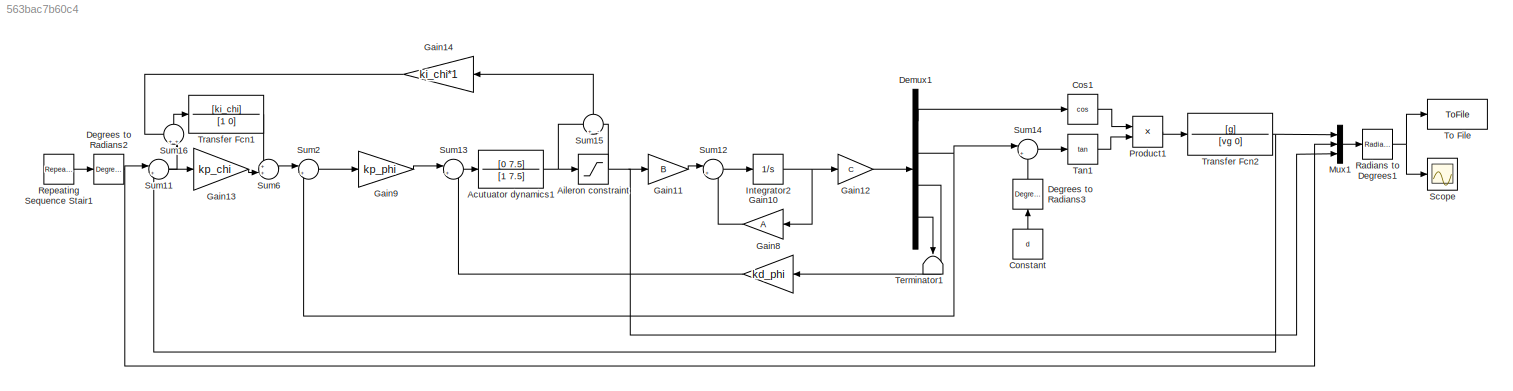
MODEL slx_563bac7b60c4
KIND model
CONFIG AbsTol = auto
CONFIG EnableMultiTasking = off
CONFIG FixedStep = auto
CONFIG MaxStep = auto
CONFIG MinStep = auto
CONFIG RelTol = 1e-3
CONFIG SampleTimeConstraint = Unconstrained
CONFIG Solver = VariableStepAuto
CONFIG SolverName = VariableStepAuto
CONFIG StartTime = 0.0
CONFIG StopTime = 500
BLOCK [TransferFcn] Acutuator dynamics1
  Denominator = [1 7.5]
  Numerator = [0 7.5]
BLOCK [Saturate] Aileron constraint 
  InputPortMap = u0
  LowerLimit = -30*deg2rad
  Ports = [1, 1]
  UpperLimit = 30*deg2rad
BLOCK [Constant] Constant
  Value = d
BLOCK [Trigonometry] Cos1
  Operator = cos
  Ports = [1, 1]
BLOCK [Reference] Degrees to Radians2  REF=simulink_extras/Transformations/Degrees to
Radians
  Ports = [1, 1]
  SourceBlock = simulink_extras/Transformations/Degrees to\nRadians
  SourceProductBaseCode = SL
  SourceProductName = Simulink
  SourceType = DegreesToRadians
BLOCK [Reference] Degrees to Radians3  REF=simulink_extras/Transformations/Degrees to
Radians
  Ports = [1, 1]
  SourceBlock = simulink_extras/Transformations/Degrees to\nRadians
  SourceProductBaseCode = SL
  SourceProductName = Simulink
  SourceType = DegreesToRadians
BLOCK [Demux] Demux1
  DisplayOption = bar
  Ports = [1, 4]
BLOCK [Gain] Gain10
  Gain = A
  Multiplication = Matrix(K*u)
  OutDataTypeStr = Inherit: Inherit via internal rule
  ParamDataTypeStr = Inherit: Inherit via internal rule
  SaturateOnIntegerOverflow = off
BLOCK [Gain] Gain11
  Gain = B
  Multiplication = Matrix(K*u)
  OutDataTypeStr = Inherit: Inherit via internal rule
  ParamDataTypeStr = Inherit: Inherit via internal rule
  SaturateOnIntegerOverflow = off
BLOCK [Gain] Gain12
  Gain = C
  Multiplication = Matrix(K*u)
  OutDataTypeStr = Inherit: Inherit via internal rule
  ParamDataTypeStr = Inherit: Inherit via internal rule
  SaturateOnIntegerOverflow = off
BLOCK [Gain] Gain13
  Gain = kp_chi
  OutDataTypeStr = Inherit: Inherit via internal rule
  ParamDataTypeStr = Inherit: Inherit via internal rule
  SaturateOnIntegerOverflow = off
BLOCK [Gain] Gain14
  Gain = ki_chi*1
  OutDataTypeStr = Inherit: Inherit via internal rule
  ParamDataTypeStr = Inherit: Inherit via internal rule
  SaturateOnIntegerOverflow = off
BLOCK [Gain] Gain8
  Gain = kd_phi
  OutDataTypeStr = Inherit: Inherit via internal rule
  ParamDataTypeStr = Inherit: Inherit via internal rule
  SaturateOnIntegerOverflow = off
BLOCK [Gain] Gain9
  Gain = kp_phi
  OutDataTypeStr = Inherit: Inherit via internal rule
  ParamDataTypeStr = Inherit: Inherit via internal rule
  SaturateOnIntegerOverflow = off
BLOCK [Integrator] Integrator2
  Ports = [1, 1]
BLOCK [Mux] Mux1
  DisplayOption = bar
  Inputs = 3
  Ports = [3, 1]
BLOCK [Product] Product1
  InputSameDT = off
  OutDataTypeStr = Inherit: Inherit via internal rule
  Ports = [2, 1]
  RndMeth = Floor
  SaturateOnIntegerOverflow = off
BLOCK [Reference] Radians to Degrees1  REF=simulink_extras/Transformations/Radians
to Degrees
  Ports = [1, 1]
  SourceBlock = simulink_extras/Transformations/Radians\nto Degrees
  SourceProductBaseCode = SL
  SourceProductName = Simulink
  SourceType = RadiansToDegrees
BLOCK [Reference] Repeating Sequence Stair1  REF=simulink/Sources/Repeating
Sequence
Stair
  Ports = [0, 1]
  SourceBlock = simulink/Sources/Repeating\nSequence\nStair
  SourceProductBaseCode = SL
  SourceProductName = Simulink
  SourceType = Repeating Sequence Stair
BLOCK [Scope] Scope
  Floating = off
  NumInputPorts = 1
  Ports = [1]
  ScopeSpecificationString = Simulink.scopes.TimeScopeBlockCfg('CurrentConfiguration', extmgr.ConfigurationSet(extmgr.Configuration('Core','General UI',true),extmgr.Configuration('Core','Source UI',true),extmgr.Configuration('Sources','WiredSimulink',true,'DataLoggingVariableName','ScopeData1'),extmgr.Configuration('Visuals','Time Domain',true,'SerializedDisplays',{struct('MinYLimReal','-37.5','MaxYLimReal','37.5','YLabelReal...<+1486ch>
BLOCK [Sum] Sum11
  IconShape = round
  InputSameDT = off
  Inputs = |+-
  OutDataTypeStr = Inherit: Inherit via internal rule
  Ports = [2, 1]
  SaturateOnIntegerOverflow = off
BLOCK [Sum] Sum12
  IconShape = round
  InputSameDT = off
  Inputs = |++
  OutDataTypeStr = Inherit: Inherit via internal rule
  Ports = [2, 1]
  SaturateOnIntegerOverflow = off
BLOCK [Sum] Sum13
  IconShape = round
  InputSameDT = off
  Inputs = |+-
  OutDataTypeStr = Inherit: Inherit via internal rule
  Ports = [2, 1]
  SaturateOnIntegerOverflow = off
BLOCK [Sum] Sum14
  IconShape = round
  InputSameDT = off
  Inputs = |++
  OutDataTypeStr = Inherit: Inherit via internal rule
  Ports = [2, 1]
  SaturateOnIntegerOverflow = off
BLOCK [Sum] Sum15
  IconShape = round
  InputSameDT = off
  Inputs = +|-
  OutDataTypeStr = Inherit: Inherit via internal rule
  Ports = [2, 1]
  SaturateOnIntegerOverflow = off
BLOCK [Sum] Sum16
  IconShape = round
  InputSameDT = off
  Inputs = ++|
  OutDataTypeStr = Inherit: Inherit via internal rule
  Ports = [2, 1]
  SaturateOnIntegerOverflow = off
BLOCK [Sum] Sum2
  IconShape = round
  InputSameDT = off
  Inputs = |+-
  OutDataTypeStr = Inherit: Inherit via internal rule
  Ports = [2, 1]
  SaturateOnIntegerOverflow = off
BLOCK [Sum] Sum6
  IconShape = round
  InputSameDT = off
  Inputs = ++|
  OutDataTypeStr = Inherit: Inherit via internal rule
  Ports = [2, 1]
  SaturateOnIntegerOverflow = off
BLOCK [Trigonometry] Tan1
  Operator = tan
  Ports = [1, 1]
BLOCK [Terminator] Terminator1
BLOCK [ToFile] To File
  Filename = results.mat
  Ports = [1]
BLOCK [TransferFcn] Transfer Fcn1
  Denominator = [1 0]
  Numerator = [ki_chi]
BLOCK [TransferFcn] Transfer Fcn2
  Denominator = [vg 0]
  Numerator = [g]
NET Acutuator dynamics1:1 -> Aileron constraint :1, Sum15:1
NET Aileron constraint :1 -> Gain11:1, Mux1:3, Sum15:2
LINE Constant:1 -> Degrees to Radians3:1
LINE Cos1:1 -> Product1:1
NET Degrees to Radians2:1 -> Mux1:2, Sum11:1
LINE Degrees to Radians3:1 -> Sum14:2
LINE Demux1:1 -> Cos1:1
NET Demux1:2 -> Sum14:1, Sum2:2
LINE Demux1:3 -> Gain8:1
LINE Demux1:4 -> Terminator1:1
LINE Gain10:1 -> Sum12:2
LINE Gain11:1 -> Sum12:1
LINE Gain12:1 -> Demux1:1
LINE Gain13:1 -> Sum6:2
LINE Gain14:1 -> Sum16:1
LINE Gain8:1 -> Sum13:2
LINE Gain9:1 -> Sum13:1
NET Integrator2:1 -> Gain10:1, Gain12:1
LINE Mux1:1 -> Radians to Degrees1:1
LINE Product1:1 -> Transfer Fcn2:1
NET Radians to Degrees1:1 -> Scope:1, To File:1
LINE Repeating Sequence Stair1:1 -> Degrees to Radians2:1
NET Sum11:1 -> Gain13:1, Sum16:2
LINE Sum12:1 -> Integrator2:1
LINE Sum13:1 -> Acutuator dynamics1:1
LINE Sum14:1 -> Tan1:1
LINE Sum15:1 -> Gain14:1
LINE Sum16:1 -> Transfer Fcn1:1
LINE Sum2:1 -> Gain9:1
LINE Sum6:1 -> Sum2:1
LINE Tan1:1 -> Product1:2
LINE Transfer Fcn1:1 -> Sum6:1
NET Transfer Fcn2:1 -> Mux1:1, Sum11:2
note: NET lines group one-source signal fan-out (src -> all destinations, sorted); 1:1 wires keep LINE
